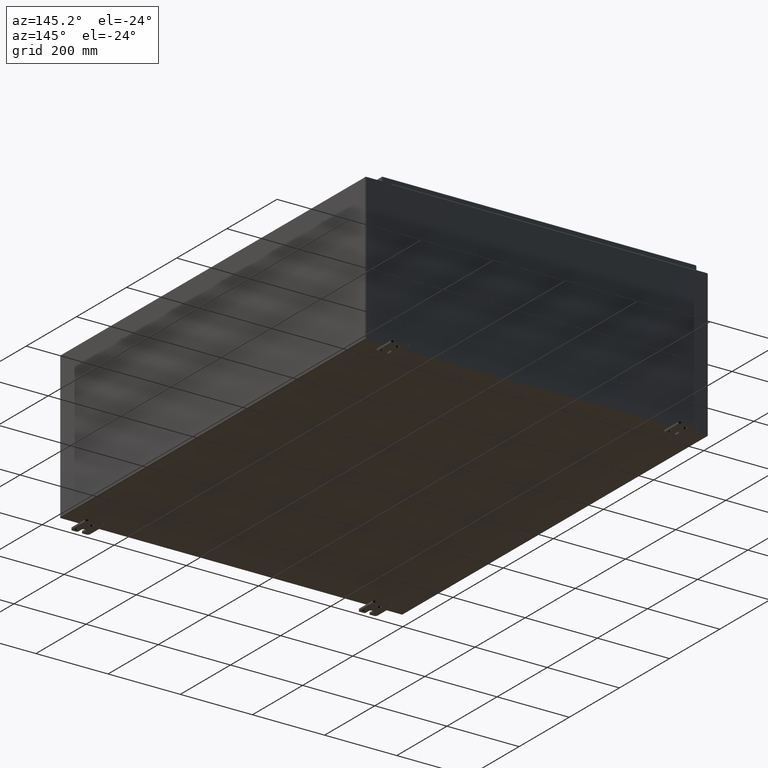
[diagram: clean part render]
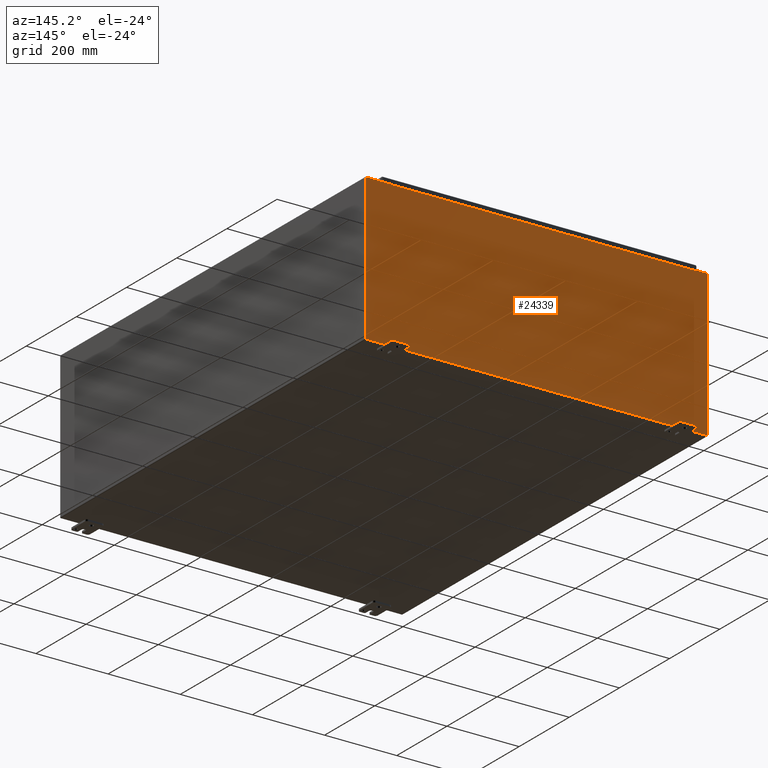
[diagram: same view with one face highlighted and labeled with its STEP entity id]
A machine part, auxiliary view. The second image highlights one B-rep face of the part: STEP entity #24339.
In plain terms, the highlighted planar face has unit normal (0, -1, -0).
Its self-contained STEP definition (entity closure, byte-faithful):
#23338=CARTESIAN_POINT('',(34.488499999999995,15.857549999999998,-2.185478E-017));
#23339=VERTEX_POINT('',#23338);
#23346=CARTESIAN_POINT('',(34.488499999999995,15.857749999999999,-2.185478E-017));
#23347=VERTEX_POINT('',#23346);
#23348=CARTESIAN_POINT('',(34.488499999999995,15.857749999999999,0.0));
#23349=DIRECTION('',(0.0,-1.0,0.0));
#23350=VECTOR('',#23349,0.000200000000001);
#23351=LINE('',#23348,#23350);
#23352=EDGE_CURVE('',#23347,#23339,#23351,.T.);
#23525=CARTESIAN_POINT('',(1.312999999999989,15.857749999999994,-2.185478E-017));
#23526=VERTEX_POINT('',#23525);
#23534=CARTESIAN_POINT('',(1.312999999999989,15.857549999999993,-2.185478E-017));
#23535=VERTEX_POINT('',#23534);
#23536=CARTESIAN_POINT('',(1.312999999999989,15.857549999999993,0.0));
#23537=DIRECTION('',(0.0,1.0,0.0));
#23538=VECTOR('',#23537,0.000200000000001);
#23539=LINE('',#23536,#23538);
#23540=EDGE_CURVE('',#23535,#23526,#23539,.T.);
#24020=CARTESIAN_POINT('',(1.31299999999999,15.857749999999994,0.0));
#24021=DIRECTION('',(1.0,0.0,0.0));
#24022=VECTOR('',#24021,33.175500000000014);
#24023=LINE('',#24020,#24022);
#24024=EDGE_CURVE('',#23526,#23347,#24023,.T.);
#24045=CARTESIAN_POINT('',(34.488699999999994,15.889000000000006,-2.185478E-017));
#24046=VERTEX_POINT('',#24045);
#24053=CARTESIAN_POINT('',(34.488699999999994,15.857549999999998,-2.185478E-017));
#24054=VERTEX_POINT('',#24053);
#24055=CARTESIAN_POINT('',(34.488699999999994,15.857549999999996,0.0));
#24056=DIRECTION('',(0.0,1.0,0.0));
#24057=VECTOR('',#24056,0.03145000000001);
#24058=LINE('',#24055,#24057);
#24059=EDGE_CURVE('',#24054,#24046,#24058,.T.);
#24082=CARTESIAN_POINT('',(34.488499999999995,15.857549999999998,0.0));
#24083=DIRECTION('',(1.0,0.0,0.0));
#24084=VECTOR('',#24083,0.0002);
#24085=LINE('',#24082,#24084);
#24086=EDGE_CURVE('',#23339,#24054,#24085,.T.);
#24106=CARTESIAN_POINT('',(1.312799999999989,15.857549999999993,-2.185478E-017));
#24107=VERTEX_POINT('',#24106);
#24108=CARTESIAN_POINT('',(1.312799999999989,15.857549999999993,0.0));
#24109=DIRECTION('',(1.0,0.0,0.0));
#24110=VECTOR('',#24109,0.000200000000001);
#24111=LINE('',#24108,#24110);
#24112=EDGE_CURVE('',#24107,#23535,#24111,.T.);
#24137=CARTESIAN_POINT('',(1.312799999999989,15.889000000000001,-2.185478E-017));
#24138=VERTEX_POINT('',#24137);
#24139=CARTESIAN_POINT('',(1.31279999999999,15.889000000000001,0.0));
#24140=DIRECTION('',(0.0,-1.0,0.0));
#24141=VECTOR('',#24140,0.031450000000008);
#24142=LINE('',#24139,#24141);
#24143=EDGE_CURVE('',#24138,#24107,#24142,.T.);
#24168=CARTESIAN_POINT('',(37.300999999999995,15.889000000000006,0.0));
#24169=VERTEX_POINT('',#24168);
#24176=CARTESIAN_POINT('',(37.300999999999995,15.889000000000006,0.0));
#24177=DIRECTION('',(-1.0,0.0,0.0));
#24178=VECTOR('',#24177,2.812300000000001);
#24179=LINE('',#24176,#24178);
#24180=EDGE_CURVE('',#24169,#24046,#24179,.T.);
#24191=CARTESIAN_POINT('',(-4.864603E-015,15.889000000000001,0.0));
#24192=VERTEX_POINT('',#24191);
#24193=CARTESIAN_POINT('',(1.312799999999989,15.889000000000001,0.0));
#24194=DIRECTION('',(-1.0,0.0,0.0));
#24195=VECTOR('',#24194,1.312799999999996);
#24196=LINE('',#24193,#24195);
#24197=EDGE_CURVE('',#24138,#24192,#24196,.T.);
#24262=CARTESIAN_POINT('',(0.0,0.0,0.0));
#24263=VERTEX_POINT('',#24262);
#24264=CARTESIAN_POINT('',(-4.864603E-015,15.889000000000001,0.0));
#24265=DIRECTION('',(0.0,-1.0,0.0));
#24266=VECTOR('',#24265,15.889000000000001);
#24267=LINE('',#24264,#24266);
#24268=EDGE_CURVE('',#24192,#24263,#24267,.T.);
#24285=CARTESIAN_POINT('',(37.301000000000002,0.0,0.0));
#24286=VERTEX_POINT('',#24285);
#24293=CARTESIAN_POINT('',(37.301000000000002,0.0,0.0));
#24294=DIRECTION('',(0.0,1.0,0.0));
#24295=VECTOR('',#24294,15.889000000000006);
#24296=LINE('',#24293,#24295);
#24297=EDGE_CURVE('',#24286,#24169,#24296,.T.);
#24310=CARTESIAN_POINT('',(0.0,0.0,0.0));
#24311=DIRECTION('',(1.0,0.0,0.0));
#24312=VECTOR('',#24311,37.301000000000002);
#24313=LINE('',#24310,#24312);
#24314=EDGE_CURVE('',#24263,#24286,#24313,.T.);
#24320=CARTESIAN_POINT('',(18.650500000000008,7.944500000000003,0.0));
#24321=DIRECTION('',(0.0,0.0,1.0));
#24322=DIRECTION('',(1.0,0.0,0.0));
#24323=AXIS2_PLACEMENT_3D('',#24320,#24321,#24322);
#24324=PLANE('',#24323);
#24325=ORIENTED_EDGE('',*,*,#24059,.T.);
#24326=ORIENTED_EDGE('',*,*,#24180,.F.);
#24327=ORIENTED_EDGE('',*,*,#24297,.F.);
#24328=ORIENTED_EDGE('',*,*,#24314,.F.);
#24329=ORIENTED_EDGE('',*,*,#24268,.F.);
#24330=ORIENTED_EDGE('',*,*,#24197,.F.);
#24331=ORIENTED_EDGE('',*,*,#24143,.T.);
#24332=ORIENTED_EDGE('',*,*,#24112,.T.);
#24333=ORIENTED_EDGE('',*,*,#23540,.T.);
#24334=ORIENTED_EDGE('',*,*,#24024,.T.);
#24335=ORIENTED_EDGE('',*,*,#23352,.T.);
#24336=ORIENTED_EDGE('',*,*,#24086,.T.);
#24337=EDGE_LOOP('',(#24325,#24326,#24327,#24328,#24329,#24330,#24331,#24332,#24333,#24334,#24335,#24336));
#24338=FACE_OUTER_BOUND('',#24337,.T.);
#24339=ADVANCED_FACE('',(#24338),#24324,.F.);